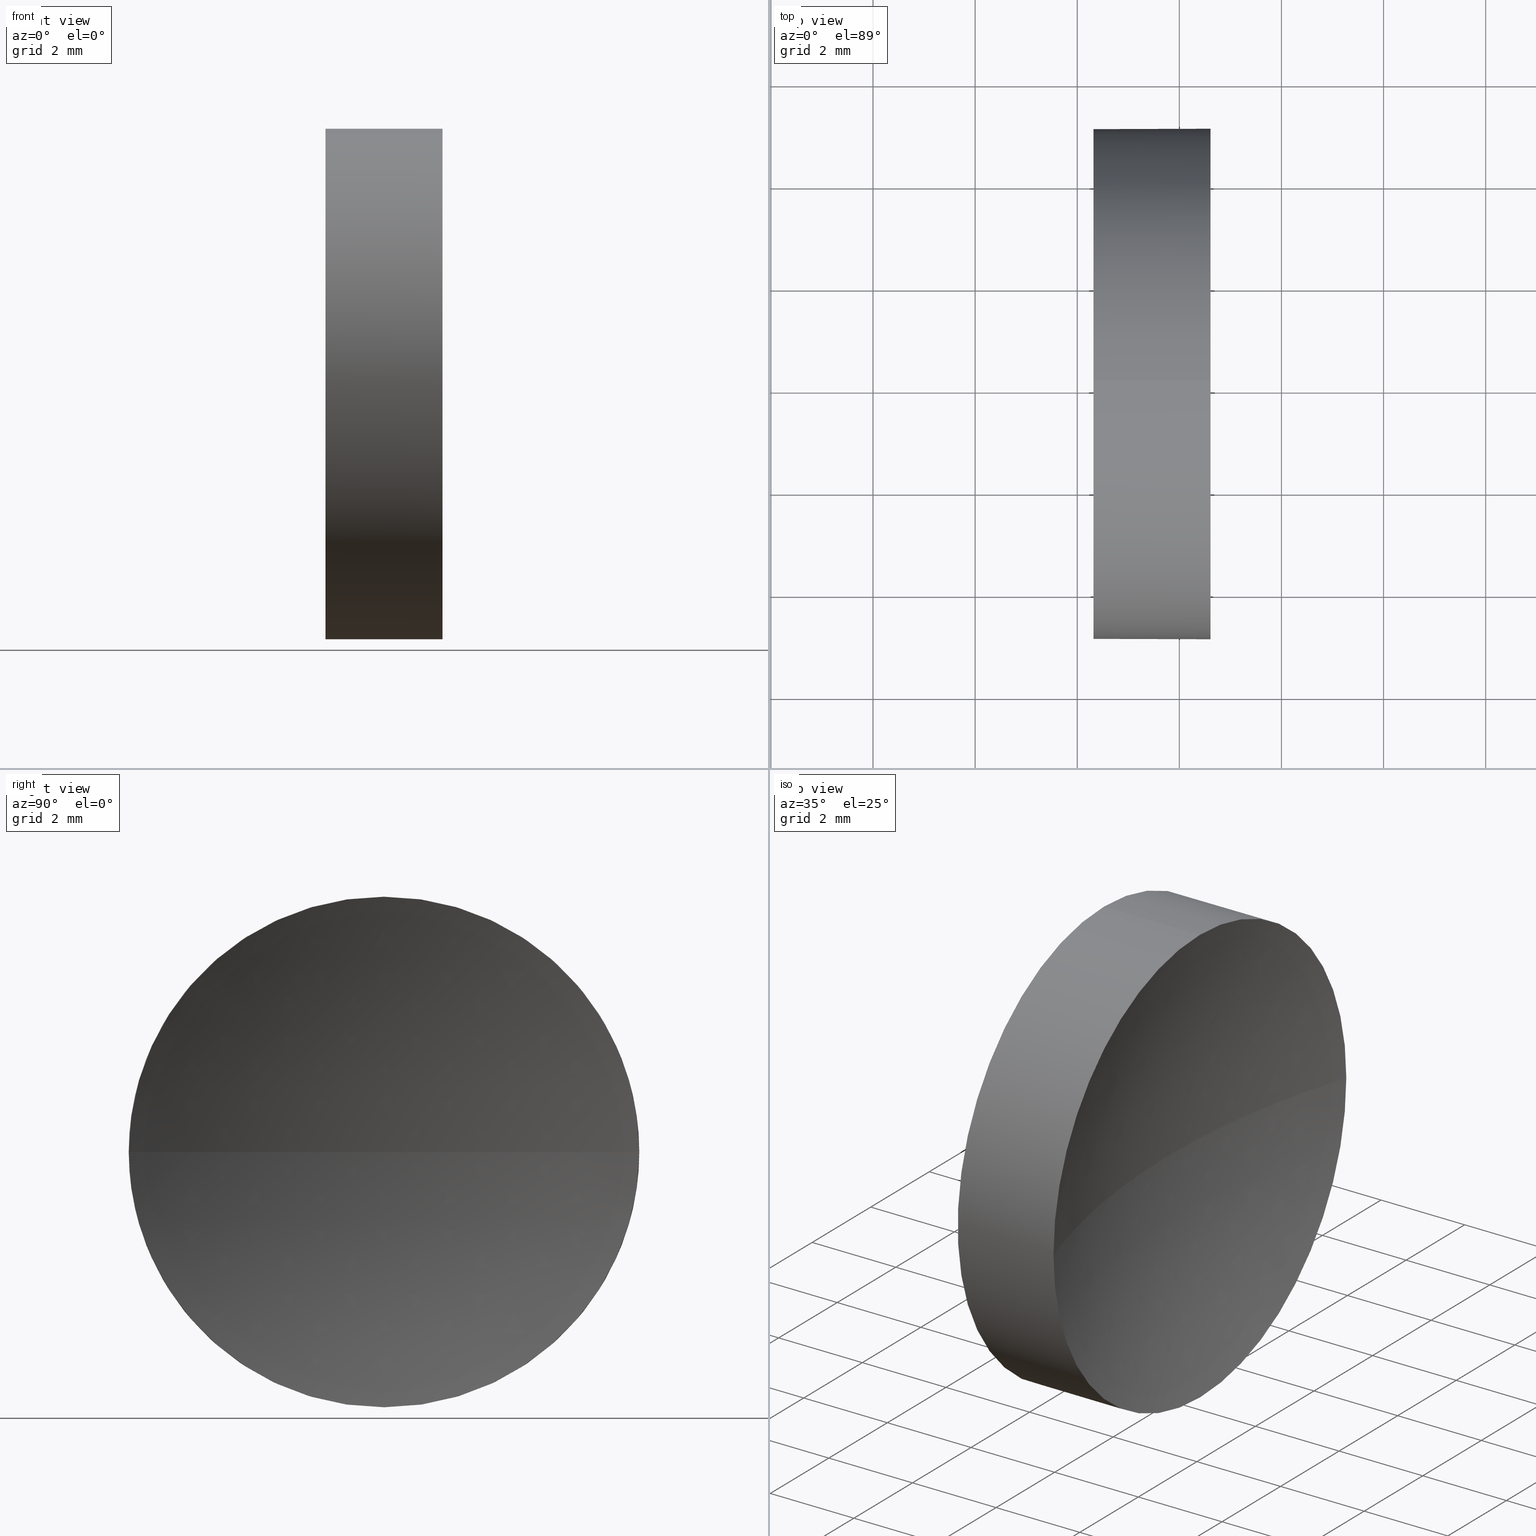
[diagram: canonical four-view strip — front | top / right | iso, engineering-drawing reading convention]
A machine part, canonical four-view strip (front | top / right | iso — engineering-drawing reading convention). The complete STEP part file that produces these views, byte-faithful:
ISO-10303-21;
HEADER;
FILE_DESCRIPTION (( 'STEP AP214' ),
    '1' );
FILE_NAME ('120014.STEP',
    '2019-06-14T05:36:38',
    ( '' ),
    ( '' ),
    'SwSTEP 2.0',
    'SolidWorks 2016',
    '' );
FILE_SCHEMA (( 'AUTOMOTIVE_DESIGN' ));
ENDSEC;

DATA;
#1 = ORIENTED_EDGE ( 'NONE', *, *, #4, .T. ) ;
#2 = PRESENTATION_LAYER_ASSIGNMENT (  '', '', ( #148 ) ) ;
#3 = FACE_OUTER_BOUND ( 'NONE', #20, .T. ) ;
#4 = EDGE_CURVE ( 'NONE', #98, #154, #177, .T. ) ;
#5 = MANIFOLD_SOLID_BREP ( '��ת1', #178 ) ;
#6 =( NAMED_UNIT ( * ) PLANE_ANGLE_UNIT ( ) SI_UNIT ( $, .RADIAN. ) );
#7 = LINE ( 'NONE', #9, #44 ) ;
#8 = DIRECTION ( 'NONE',  ( 1.000000000000000000, 0.0000000000000000000, 0.0000000000000000000 ) ) ;
#9 = CARTESIAN_POINT ( 'NONE',  ( 42.44986111413682300, 26.08904114919495900, -5.000000000000000900 ) ) ;
#10 = EDGE_CURVE ( 'NONE', #100, #29, #7, .T. ) ;
#11 = DIRECTION ( 'NONE',  ( -1.000000000000000000, -0.0000000000000000000, -0.0000000000000000000 ) ) ;
#12 = MECHANICAL_DESIGN_GEOMETRIC_PRESENTATION_REPRESENTATION (  '', ( #115 ), #26 ) ;
#13 = ADVANCED_BREP_SHAPE_REPRESENTATION ( '120014', ( #5, #116 ), #109 ) ;
#14 = ORIENTED_EDGE ( 'NONE', *, *, #81, .F. ) ;
#15 = EDGE_CURVE ( 'NONE', #43, #29, #68, .T. ) ;
#16 = DIRECTION ( 'NONE',  ( 1.000000000000000000, 0.0000000000000000000, 0.0000000000000000000 ) ) ;
#17 = PRODUCT_DEFINITION_SHAPE ( 'NONE', 'NONE',  #139 ) ;
#18 = DIRECTION ( 'NONE',  ( 0.0000000000000000000, -1.224646799147353200E-016, 1.000000000000000000 ) ) ;
#19 = DIRECTION ( 'NONE',  ( 0.0000000000000000000, 0.0000000000000000000, -1.000000000000000000 ) ) ;
#20 = EDGE_LOOP ( 'NONE', ( #65, #108, #95, #169, #27 ) ) ;
#21 = DIRECTION ( 'NONE',  ( -1.000000000000000000, -0.0000000000000000000, -0.0000000000000000000 ) ) ;
#22 = ORIENTED_EDGE ( 'NONE', *, *, #51, .T. ) ;
#23 = CARTESIAN_POINT ( 'NONE',  ( 42.44986111413682300, 26.08904114919495900, 0.0000000000000000000 ) ) ;
#24 = CARTESIAN_POINT ( 'NONE',  ( 62.03736885217669100, 26.08904114919495900, 0.0000000000000000000 ) ) ;
#25 = ADVANCED_FACE ( 'NONE', ( #38 ), #31, .F. ) ;
#26 =( GEOMETRIC_REPRESENTATION_CONTEXT ( 3 ) GLOBAL_UNCERTAINTY_ASSIGNED_CONTEXT ( ( #45 ) ) GLOBAL_UNIT_ASSIGNED_CONTEXT ( ( #34, #138, #127 ) ) REPRESENTATION_CONTEXT ( 'NONE', 'WORKASPACE' ) );
#27 = ORIENTED_EDGE ( 'NONE', *, *, #72, .F. ) ;
#28 = CARTESIAN_POINT ( 'NONE',  ( 46.60958549791029500, 26.08904114919495900, 0.0000000000000000000 ) ) ;
#29 = VERTEX_POINT ( 'NONE', #64 ) ;
#30 = DIRECTION ( 'NONE',  ( 0.0000000000000000000, -1.000000000000000000, -1.224646799147353000E-016 ) ) ;
#31 = SPHERICAL_SURFACE ( 'NONE', #131, 16.21778342518420100 ) ;
#32 = APPLICATION_PROTOCOL_DEFINITION ( 'draft international standard', 'automotive_design', 1998, #82 ) ;
#33 = ORIENTED_EDGE ( 'NONE', *, *, #15, .F. ) ;
#34 =( LENGTH_UNIT ( ) NAMED_UNIT ( * ) SI_UNIT ( .MILLI., .METRE. ) );
#35 = VERTEX_POINT ( 'NONE', #78 ) ;
#36 = CARTESIAN_POINT ( 'NONE',  ( 46.60958549791029500, 26.08904114919495900, 0.0000000000000000000 ) ) ;
#37 = DIRECTION ( 'NONE',  ( 0.0000000000000000000, 0.0000000000000000000, 1.000000000000000000 ) ) ;
#38 = FACE_OUTER_BOUND ( 'NONE', #158, .T. ) ;
#39 = AXIS2_PLACEMENT_3D ( 'NONE', #101, #18, #30 ) ;
#40 = DIRECTION ( 'NONE',  ( 0.0000000000000000000, 0.0000000000000000000, 1.000000000000000000 ) ) ;
#41 = CARTESIAN_POINT ( 'NONE',  ( 46.60958549791029500, 26.08904114919495900, -5.000000000000000900 ) ) ;
#42 = ORIENTED_EDGE ( 'NONE', *, *, #176, .F. ) ;
#43 = VERTEX_POINT ( 'NONE', #175 ) ;
#44 = VECTOR ( 'NONE', #137, 1000.000000000000000 ) ;
#45 = UNCERTAINTY_MEASURE_WITH_UNIT (LENGTH_MEASURE( 1.000000000000000100E-005 ), #34, 'distance_accuracy_value', 'NONE');
#46 = PRESENTATION_STYLE_ASSIGNMENT (( #70 ) ) ;
#47 = CARTESIAN_POINT ( 'NONE',  ( 46.60958549791029500, 31.08904114919496600, 6.123233995736773200E-016 ) ) ;
#48 = CIRCLE ( 'NONE', #143, 16.21778342518420100 ) ;
#49 =( LENGTH_UNIT ( ) NAMED_UNIT ( * ) SI_UNIT ( .MILLI., .METRE. ) );
#50 = CARTESIAN_POINT ( 'NONE',  ( 62.03736885217669100, 26.08904114919495900, 0.0000000000000000000 ) ) ;
#51 = EDGE_CURVE ( 'NONE', #118, #35, #48, .T. ) ;
#52 = ORIENTED_EDGE ( 'NONE', *, *, #84, .T. ) ;
#53 = FILL_AREA_STYLE ('',( #170 ) ) ;
#54 = AXIS2_PLACEMENT_3D ( 'NONE', #28, #122, #99 ) ;
#55 = AXIS2_PLACEMENT_3D ( 'NONE', #130, #11, #40 ) ;
#56 = EDGE_LOOP ( 'NONE', ( #52, #60, #33, #183, #1 ) ) ;
#57 = APPLICATION_CONTEXT ( 'automotive_design' ) ;
#58 = DIRECTION ( 'NONE',  ( 0.0000000000000000000, 0.0000000000000000000, 1.000000000000000000 ) ) ;
#59 = FACE_OUTER_BOUND ( 'NONE', #66, .T. ) ;
#60 = ORIENTED_EDGE ( 'NONE', *, *, #10, .T. ) ;
#61 = SHAPE_DEFINITION_REPRESENTATION ( #17, #13 ) ;
#62 = ORIENTED_EDGE ( 'NONE', *, *, #107, .F. ) ;
#63 = CARTESIAN_POINT ( 'NONE',  ( 44.31958549791029600, 26.08904114919495900, 0.0000000000000000000 ) ) ;
#64 = CARTESIAN_POINT ( 'NONE',  ( 44.31958549791029600, 26.08904114919495900, -5.000000000000000900 ) ) ;
#65 = ORIENTED_EDGE ( 'NONE', *, *, #10, .F. ) ;
#66 = EDGE_LOOP ( 'NONE', ( #147, #145 ) ) ;
#67 = PLANE ( 'NONE',  #119 ) ;
#68 = CIRCLE ( 'NONE', #91, 5.000000000000000900 ) ;
#69 = AXIS2_PLACEMENT_3D ( 'NONE', #23, #128, #156 ) ;
#70 = SURFACE_STYLE_USAGE ( .BOTH. , #121 ) ;
#71 =( LENGTH_UNIT ( ) NAMED_UNIT ( * ) SI_UNIT ( .MILLI., .METRE. ) );
#72 = EDGE_CURVE ( 'NONE', #29, #43, #135, .T. ) ;
#73 = DIRECTION ( 'NONE',  ( 0.0000000000000000000, 0.0000000000000000000, 1.000000000000000000 ) ) ;
#74 = EDGE_LOOP ( 'NONE', ( #153, #125, #113, #14 ) ) ;
#75 = AXIS2_PLACEMENT_3D ( 'NONE', #63, #186, #90 ) ;
#76 = CYLINDRICAL_SURFACE ( 'NONE', #69, 5.000000000000000900 ) ;
#77 = CARTESIAN_POINT ( 'NONE',  ( 42.44986111413682300, 26.08904114919495900, 5.000000000000000900 ) ) ;
#78 = CARTESIAN_POINT ( 'NONE',  ( 45.81958542699248900, 26.08904114919495900, 0.0000000000000000000 ) ) ;
#79 = DIRECTION ( 'NONE',  ( -1.000000000000000000, 0.0000000000000000000, 0.0000000000000000000 ) ) ;
#80 = UNCERTAINTY_MEASURE_WITH_UNIT (LENGTH_MEASURE( 1.000000000000000100E-005 ), #71, 'distance_accuracy_value', 'NONE');
#81 = EDGE_CURVE ( 'NONE', #100, #118, #185, .T. ) ;
#82 = APPLICATION_CONTEXT ( 'automotive_design' ) ;
#83 = SPHERICAL_SURFACE ( 'NONE', #172, 16.21778342518420100 ) ;
#84 = EDGE_CURVE ( 'NONE', #154, #100, #160, .T. ) ;
#85 = PRODUCT_CONTEXT ( 'NONE', #57, 'mechanical' ) ;
#86 = FILL_AREA_STYLE ('',( #136 ) ) ;
#87 = ADVANCED_FACE ( 'NONE', ( #3 ), #76, .T. ) ;
#88 = CARTESIAN_POINT ( 'NONE',  ( 42.44986111413682300, 26.08904114919495900, 0.0000000000000000000 ) ) ;
#89 = CARTESIAN_POINT ( 'NONE',  ( 44.31958549791029600, 26.08904114919495900, 0.0000000000000000000 ) ) ;
#90 = DIRECTION ( 'NONE',  ( 0.0000000000000000000, 0.0000000000000000000, 1.000000000000000000 ) ) ;
#91 = AXIS2_PLACEMENT_3D ( 'NONE', #89, #129, #37 ) ;
#92 = PRODUCT ( '120014', '120014', '', ( #85 ) ) ;
#93 = CARTESIAN_POINT ( 'NONE',  ( 46.60958549791029500, 26.08904114919495900, 5.000000000000000900 ) ) ;
#94 = EDGE_CURVE ( 'NONE', #98, #43, #141, .T. ) ;
#95 = ORIENTED_EDGE ( 'NONE', *, *, #107, .T. ) ;
#96 = PRESENTATION_LAYER_ASSIGNMENT (  '', '', ( #115 ) ) ;
#97 = CIRCLE ( 'NONE', #54, 5.000000000000000900 ) ;
#98 = VERTEX_POINT ( 'NONE', #93 ) ;
#99 = DIRECTION ( 'NONE',  ( 0.0000000000000000000, 0.0000000000000000000, 1.000000000000000000 ) ) ;
#100 = VERTEX_POINT ( 'NONE', #41 ) ;
#101 = CARTESIAN_POINT ( 'NONE',  ( 62.03736885217669100, 26.08904114919495900, 0.0000000000000000000 ) ) ;
#102 = DIRECTION ( 'NONE',  ( 0.0000000000000000000, -1.000000000000000000, 0.0000000000000000000 ) ) ;
#103 = VECTOR ( 'NONE', #140, 1000.000000000000000 ) ;
#104 = ADVANCED_FACE ( 'NONE', ( #155 ), #83, .F. ) ;
#105 = AXIS2_PLACEMENT_3D ( 'NONE', #36, #21, #124 ) ;
#106 = PRESENTATION_STYLE_ASSIGNMENT (( #123 ) ) ;
#107 = EDGE_CURVE ( 'NONE', #118, #98, #97, .T. ) ;
#108 = ORIENTED_EDGE ( 'NONE', *, *, #81, .T. ) ;
#109 =( GEOMETRIC_REPRESENTATION_CONTEXT ( 3 ) GLOBAL_UNCERTAINTY_ASSIGNED_CONTEXT ( ( #80 ) ) GLOBAL_UNIT_ASSIGNED_CONTEXT ( ( #71, #182, #179 ) ) REPRESENTATION_CONTEXT ( 'NONE', 'WORKASPACE' ) );
#110 = CARTESIAN_POINT ( 'NONE',  ( 46.60958549791029500, 26.08904114919495900, 0.0000000000000000000 ) ) ;
#111 = DIRECTION ( 'NONE',  ( -1.000000000000000000, -0.0000000000000000000, -0.0000000000000000000 ) ) ;
#112 = PRODUCT_RELATED_PRODUCT_CATEGORY ( 'part', '', ( #92 ) ) ;
#113 = ORIENTED_EDGE ( 'NONE', *, *, #51, .F. ) ;
#114 = CYLINDRICAL_SURFACE ( 'NONE', #181, 5.000000000000000900 ) ;
#115 = STYLED_ITEM ( 'NONE', ( #106 ), #5 ) ;
#116 = AXIS2_PLACEMENT_3D ( 'NONE', #146, #167, #16 ) ;
#117 = CARTESIAN_POINT ( 'NONE',  ( 46.60958549791029500, 21.08904114919495100, 0.0000000000000000000 ) ) ;
#118 = VERTEX_POINT ( 'NONE', #117 ) ;
#119 = AXIS2_PLACEMENT_3D ( 'NONE', #152, #8, #19 ) ;
#120 = FACE_OUTER_BOUND ( 'NONE', #56, .T. ) ;
#121 = SURFACE_SIDE_STYLE ('',( #171 ) ) ;
#122 = DIRECTION ( 'NONE',  ( -1.000000000000000000, -0.0000000000000000000, -0.0000000000000000000 ) ) ;
#123 = SURFACE_STYLE_USAGE ( .BOTH. , #126 ) ;
#124 = DIRECTION ( 'NONE',  ( 0.0000000000000000000, 0.0000000000000000000, 1.000000000000000000 ) ) ;
#125 = ORIENTED_EDGE ( 'NONE', *, *, #176, .T. ) ;
#126 = SURFACE_SIDE_STYLE ('',( #134 ) ) ;
#127 =( NAMED_UNIT ( * ) SI_UNIT ( $, .STERADIAN. ) SOLID_ANGLE_UNIT ( ) );
#128 = DIRECTION ( 'NONE',  ( -1.000000000000000000, -0.0000000000000000000, -0.0000000000000000000 ) ) ;
#129 = DIRECTION ( 'NONE',  ( -1.000000000000000000, -0.0000000000000000000, -0.0000000000000000000 ) ) ;
#130 = CARTESIAN_POINT ( 'NONE',  ( 46.60958549791029500, 26.08904114919495900, 0.0000000000000000000 ) ) ;
#131 = AXIS2_PLACEMENT_3D ( 'NONE', #50, #73, #174 ) ;
#132 =( NAMED_UNIT ( * ) SI_UNIT ( $, .STERADIAN. ) SOLID_ANGLE_UNIT ( ) );
#133 = COLOUR_RGB ( '',1.000000000000000000, 1.000000000000000000, 1.000000000000000000 ) ;
#134 = SURFACE_STYLE_FILL_AREA ( #53 ) ;
#135 = CIRCLE ( 'NONE', #75, 5.000000000000000900 ) ;
#136 = FILL_AREA_STYLE_COLOUR ( '', #133 ) ;
#137 = DIRECTION ( 'NONE',  ( -1.000000000000000000, -0.0000000000000000000, -0.0000000000000000000 ) ) ;
#138 =( NAMED_UNIT ( * ) PLANE_ANGLE_UNIT ( ) SI_UNIT ( $, .RADIAN. ) );
#139 = PRODUCT_DEFINITION ( 'δ֪', '', #168, #144 ) ;
#140 = DIRECTION ( 'NONE',  ( -1.000000000000000000, -0.0000000000000000000, -0.0000000000000000000 ) ) ;
#141 = LINE ( 'NONE', #77, #103 ) ;
#142 = ORIENTED_EDGE ( 'NONE', *, *, #4, .F. ) ;
#143 = AXIS2_PLACEMENT_3D ( 'NONE', #24, #184, #79 ) ;
#144 = PRODUCT_DEFINITION_CONTEXT ( 'detailed design', #82, 'design' ) ;
#145 = ORIENTED_EDGE ( 'NONE', *, *, #72, .T. ) ;
#146 = CARTESIAN_POINT ( 'NONE',  ( 0.0000000000000000000, 0.0000000000000000000, 0.0000000000000000000 ) ) ;
#147 = ORIENTED_EDGE ( 'NONE', *, *, #15, .T. ) ;
#148 = STYLED_ITEM ( 'NONE', ( #46 ), #13 ) ;
#149 = CIRCLE ( 'NONE', #39, 16.21778342518420100 ) ;
#150 = ADVANCED_FACE ( 'NONE', ( #120 ), #114, .T. ) ;
#151 =( GEOMETRIC_REPRESENTATION_CONTEXT ( 3 ) GLOBAL_UNCERTAINTY_ASSIGNED_CONTEXT ( ( #159 ) ) GLOBAL_UNIT_ASSIGNED_CONTEXT ( ( #49, #6, #132 ) ) REPRESENTATION_CONTEXT ( 'NONE', 'WORKASPACE' ) );
#152 = CARTESIAN_POINT ( 'NONE',  ( 44.31958549791029600, 26.08904114919495900, 0.0000000000000000000 ) ) ;
#153 = ORIENTED_EDGE ( 'NONE', *, *, #84, .F. ) ;
#154 = VERTEX_POINT ( 'NONE', #47 ) ;
#155 = FACE_OUTER_BOUND ( 'NONE', #74, .T. ) ;
#156 = DIRECTION ( 'NONE',  ( 0.0000000000000000000, 0.0000000000000000000, 1.000000000000000000 ) ) ;
#157 = DIRECTION ( 'NONE',  ( 0.0000000000000000000, 0.0000000000000000000, 1.000000000000000000 ) ) ;
#158 = EDGE_LOOP ( 'NONE', ( #42, #142, #62, #22 ) ) ;
#159 = UNCERTAINTY_MEASURE_WITH_UNIT (LENGTH_MEASURE( 1.000000000000000100E-005 ), #49, 'distance_accuracy_value', 'NONE');
#160 = CIRCLE ( 'NONE', #55, 5.000000000000000900 ) ;
#161 = AXIS2_PLACEMENT_3D ( 'NONE', #110, #111, #157 ) ;
#162 = MECHANICAL_DESIGN_GEOMETRIC_PRESENTATION_REPRESENTATION (  '', ( #148 ), #151 ) ;
#163 = COLOUR_RGB ( '',1.000000000000000000, 1.000000000000000000, 1.000000000000000000 ) ;
#164 = APPLICATION_PROTOCOL_DEFINITION ( 'draft international standard', 'automotive_design', 1998, #57 ) ;
#165 = DIRECTION ( 'NONE',  ( 0.0000000000000000000, 0.0000000000000000000, 1.000000000000000000 ) ) ;
#166 = DIRECTION ( 'NONE',  ( -1.000000000000000000, -0.0000000000000000000, -0.0000000000000000000 ) ) ;
#167 = DIRECTION ( 'NONE',  ( 0.0000000000000000000, 0.0000000000000000000, 1.000000000000000000 ) ) ;
#168 = PRODUCT_DEFINITION_FORMATION_WITH_SPECIFIED_SOURCE ( '�κ�', '', #92, .NOT_KNOWN. ) ;
#169 = ORIENTED_EDGE ( 'NONE', *, *, #94, .T. ) ;
#170 = FILL_AREA_STYLE_COLOUR ( '', #163 ) ;
#171 = SURFACE_STYLE_FILL_AREA ( #86 ) ;
#172 = AXIS2_PLACEMENT_3D ( 'NONE', #173, #58, #102 ) ;
#173 = CARTESIAN_POINT ( 'NONE',  ( 62.03736885217669100, 26.08904114919495900, 0.0000000000000000000 ) ) ;
#174 = DIRECTION ( 'NONE',  ( 0.0000000000000000000, -1.000000000000000000, 0.0000000000000000000 ) ) ;
#175 = CARTESIAN_POINT ( 'NONE',  ( 44.31958549791029600, 26.08904114919495900, 5.000000000000000900 ) ) ;
#176 = EDGE_CURVE ( 'NONE', #154, #35, #149, .T. ) ;
#177 = CIRCLE ( 'NONE', #105, 5.000000000000000900 ) ;
#178 = CLOSED_SHELL ( 'NONE', ( #150, #104, #25, #87, #180 ) ) ;
#179 =( NAMED_UNIT ( * ) SI_UNIT ( $, .STERADIAN. ) SOLID_ANGLE_UNIT ( ) );
#180 = ADVANCED_FACE ( 'NONE', ( #59 ), #67, .F. ) ;
#181 = AXIS2_PLACEMENT_3D ( 'NONE', #88, #166, #165 ) ;
#182 =( NAMED_UNIT ( * ) PLANE_ANGLE_UNIT ( ) SI_UNIT ( $, .RADIAN. ) );
#183 = ORIENTED_EDGE ( 'NONE', *, *, #94, .F. ) ;
#184 = DIRECTION ( 'NONE',  ( 0.0000000000000000000, 0.0000000000000000000, -1.000000000000000000 ) ) ;
#185 = CIRCLE ( 'NONE', #161, 5.000000000000000900 ) ;
#186 = DIRECTION ( 'NONE',  ( -1.000000000000000000, -0.0000000000000000000, -0.0000000000000000000 ) ) ;
ENDSEC;
END-ISO-10303-21;
